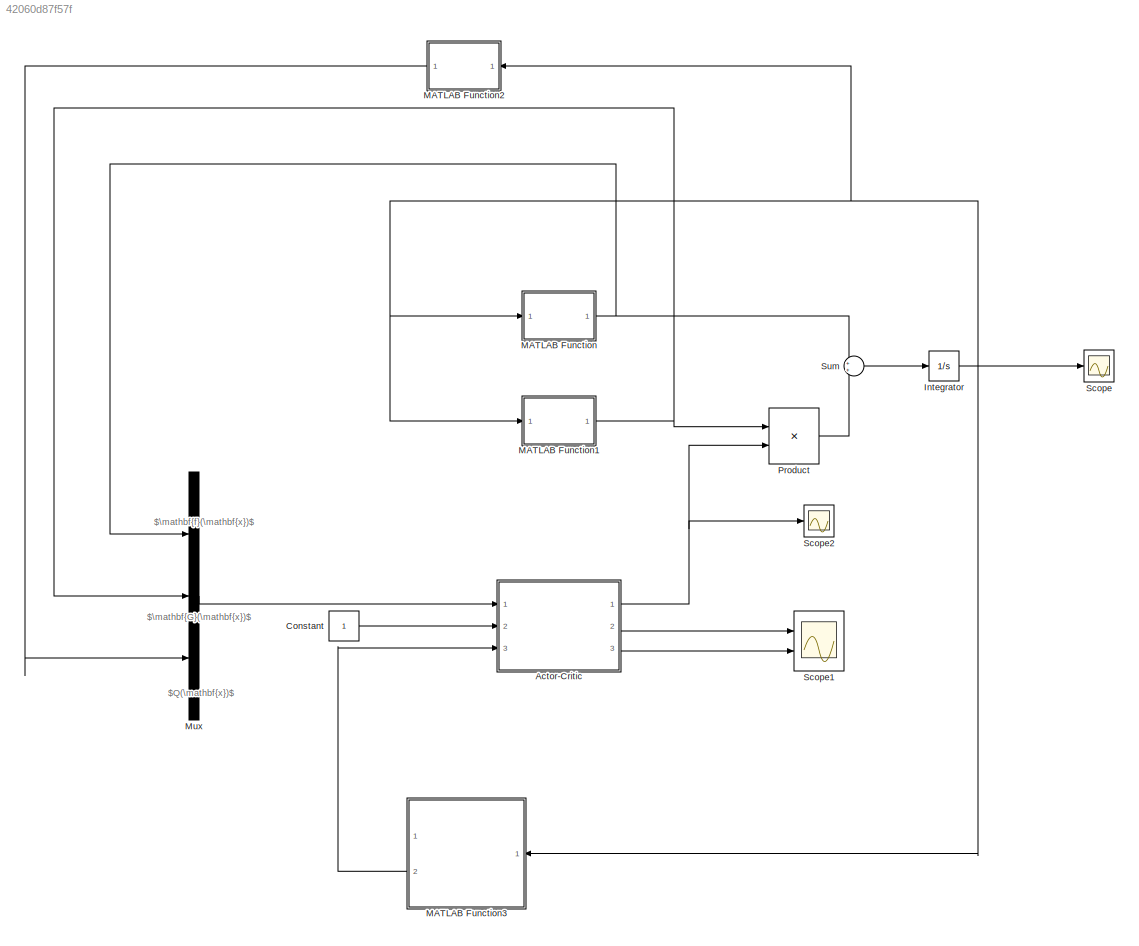
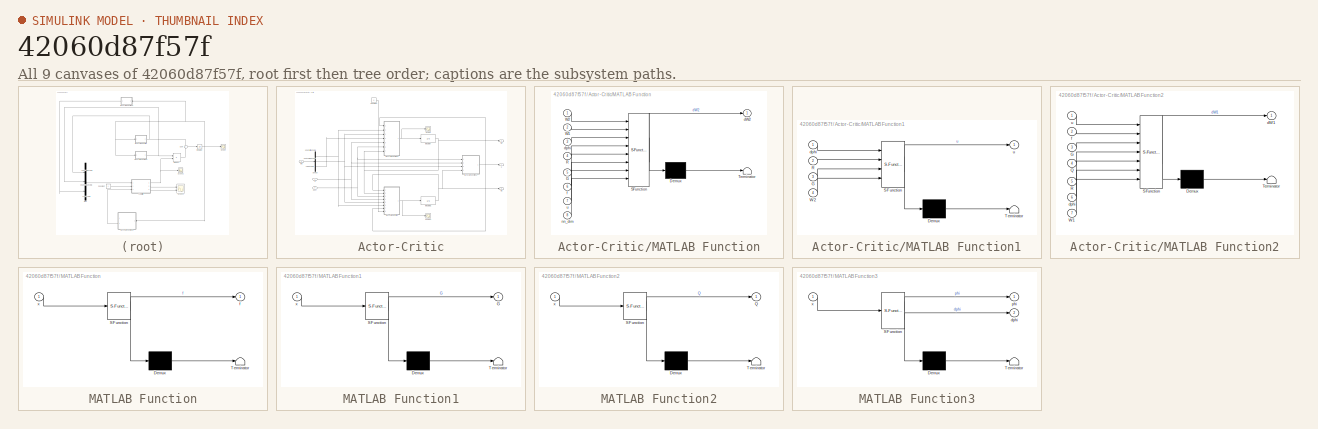
[diagram: thumbnail index - all 9 canvases of the model, root first then tree order]
MODEL slx_42060d87f57f
KIND model
CONFIG AbsTol = auto
CONFIG EnableMultiTasking = off
CONFIG FixedStep = 1e-4
CONFIG MaxStep = auto
CONFIG MinStep = auto
CONFIG RelTol = 1e-3
CONFIG SampleTimeConstraint = Unconstrained
CONFIG Solver = ode4
CONFIG SolverName = ode4
CONFIG StartTime = 0.0
CONFIG StopTime = 30.0
BLOCK [SubSystem] Actor-Critic
  Ports = [3, 3]
  RequestExecContextInheritance = off
BLOCK [Constant] Actor-Critic/Constant
  Value = 6
BLOCK [Demux] Actor-Critic/Demux
  DisplayOption = bar
  Outputs = 3
  Ports = [1, 3]
BLOCK [Integrator] Actor-Critic/Integrator
  InitialCondition = randn(6,1)
  Ports = [1, 1]
BLOCK [Integrator] Actor-Critic/Integrator1
  InitialCondition = randn(6,1)
  Ports = [1, 1]
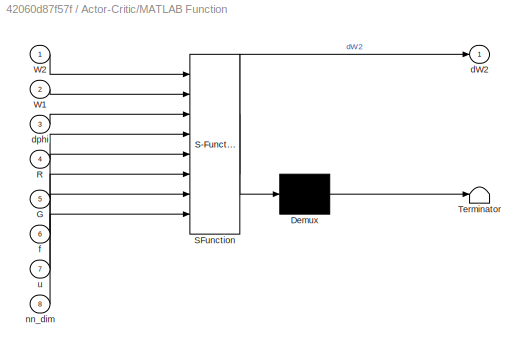
BLOCK [SubSystem] Actor-Critic/MATLAB Function
  ErrorFcn = Stateflow.Translate.translate
  PermitHierarchicalResolution = ExplicitOnly
  Ports = [8, 1]
  RequestExecContextInheritance = off
  SFBlockType = MATLAB Function
  TreatAsAtomicUnit = on
BLOCK [Demux] Actor-Critic/MATLAB Function/ Demux 
  Outputs = 1
  Ports = [1, 1]
BLOCK [S-Function] Actor-Critic/MATLAB Function/ SFunction 
  EnableBusSupport = on
  FunctionName = sf_sfun
  PortCounts = [8 2]
  Ports = [8, 2]
  SFcnIsStateOwnerBlock = off
  SFunctionDeploymentMode = off
  Tag = Stateflow S-Function 4
BLOCK [Terminator] Actor-Critic/MATLAB Function/ Terminator 
BLOCK [Inport] Actor-Critic/MATLAB Function/G
  IconDisplay = Port number
  Port = 5
BLOCK [Inport] Actor-Critic/MATLAB Function/R
  IconDisplay = Port number
  Port = 4
BLOCK [Inport] Actor-Critic/MATLAB Function/W1
  IconDisplay = Port number
  Port = 2
BLOCK [Inport] Actor-Critic/MATLAB Function/W2
  IconDisplay = Port number
BLOCK [Outport] Actor-Critic/MATLAB Function/dW2
  IconDisplay = Port number
BLOCK [Inport] Actor-Critic/MATLAB Function/dphi
  IconDisplay = Port number
  Port = 3
BLOCK [Inport] Actor-Critic/MATLAB Function/f
  IconDisplay = Port number
  Port = 6
BLOCK [Inport] Actor-Critic/MATLAB Function/nn_dim
  IconDisplay = Port number
  Port = 8
BLOCK [Inport] Actor-Critic/MATLAB Function/u
  IconDisplay = Port number
  Port = 7
BLOCK [SubSystem] Actor-Critic/MATLAB Function1
  ErrorFcn = Stateflow.Translate.translate
  PermitHierarchicalResolution = ExplicitOnly
  Ports = [4, 1]
  RequestExecContextInheritance = off
  SFBlockType = MATLAB Function
  TreatAsAtomicUnit = on
BLOCK [Demux] Actor-Critic/MATLAB Function1/ Demux 
  Outputs = 1
  Ports = [1, 1]
BLOCK [S-Function] Actor-Critic/MATLAB Function1/ SFunction 
  EnableBusSupport = on
  FunctionName = sf_sfun
  PortCounts = [4 2]
  Ports = [4, 2]
  SFcnIsStateOwnerBlock = off
  SFunctionDeploymentMode = off
  Tag = Stateflow S-Function 5
BLOCK [Terminator] Actor-Critic/MATLAB Function1/ Terminator 
BLOCK [Inport] Actor-Critic/MATLAB Function1/G
  IconDisplay = Port number
  Port = 3
BLOCK [Inport] Actor-Critic/MATLAB Function1/R
  IconDisplay = Port number
  Port = 2
BLOCK [Inport] Actor-Critic/MATLAB Function1/W2
  IconDisplay = Port number
  Port = 4
BLOCK [Inport] Actor-Critic/MATLAB Function1/dphi
  IconDisplay = Port number
BLOCK [Outport] Actor-Critic/MATLAB Function1/u
  IconDisplay = Port number
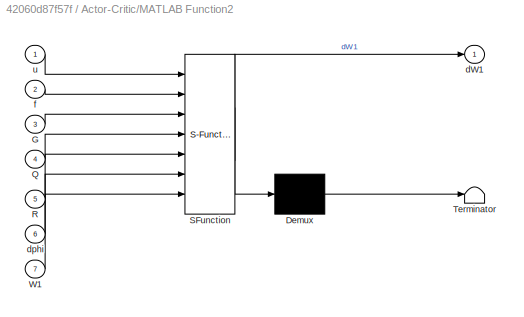
BLOCK [SubSystem] Actor-Critic/MATLAB Function2
  ErrorFcn = Stateflow.Translate.translate
  PermitHierarchicalResolution = ExplicitOnly
  Ports = [7, 1]
  RequestExecContextInheritance = off
  SFBlockType = MATLAB Function
  TreatAsAtomicUnit = on
BLOCK [Demux] Actor-Critic/MATLAB Function2/ Demux 
  Outputs = 1
  Ports = [1, 1]
BLOCK [S-Function] Actor-Critic/MATLAB Function2/ SFunction 
  EnableBusSupport = on
  FunctionName = sf_sfun
  PortCounts = [7 2]
  Ports = [7, 2]
  SFcnIsStateOwnerBlock = off
  SFunctionDeploymentMode = off
  Tag = Stateflow S-Function 3
BLOCK [Terminator] Actor-Critic/MATLAB Function2/ Terminator 
BLOCK [Inport] Actor-Critic/MATLAB Function2/G
  IconDisplay = Port number
  Port = 3
BLOCK [Inport] Actor-Critic/MATLAB Function2/Q
  IconDisplay = Port number
  Port = 4
BLOCK [Inport] Actor-Critic/MATLAB Function2/R
  IconDisplay = Port number
  Port = 5
BLOCK [Inport] Actor-Critic/MATLAB Function2/W1
  IconDisplay = Port number
  Port = 7
BLOCK [Outport] Actor-Critic/MATLAB Function2/dW1
  IconDisplay = Port number
BLOCK [Inport] Actor-Critic/MATLAB Function2/dphi
  IconDisplay = Port number
  Port = 6
BLOCK [Inport] Actor-Critic/MATLAB Function2/f
  IconDisplay = Port number
  Port = 2
BLOCK [Inport] Actor-Critic/MATLAB Function2/u
  IconDisplay = Port number
BLOCK [Inport] Actor-Critic/R
  IconDisplay = Port number
  Port = 2
BLOCK [Scope] Actor-Critic/Scope
  Floating = off
  NumInputPorts = 1
  Ports = [1]
  ScopeSpecificationString = Simulink.scopes.TimeScopeBlockCfg('CurrentConfiguration', extmgr.ConfigurationSet(extmgr.Configuration('Core','General UI',true),extmgr.Configuration('Core','Source UI',true),extmgr.Configuration('Sources','WiredSimulink',true,'DataLoggingVariableName','ScopeData1'),extmgr.Configuration('Visuals','Time Domain',true),extmgr.Configuration('Tools','Plot Navigation',true),extmgr.Configuration('Tools',...<+40ch>
BLOCK [Scope] Actor-Critic/Scope1
  Floating = off
  NumInputPorts = 1
  Ports = [1]
  ScopeSpecificationString = Simulink.scopes.TimeScopeBlockCfg('CurrentConfiguration', extmgr.ConfigurationSet(extmgr.Configuration('Core','General UI',true),extmgr.Configuration('Core','Source UI',true),extmgr.Configuration('Sources','WiredSimulink',true,'DataLoggingVariableName','ScopeData2'),extmgr.Configuration('Visuals','Time Domain',true,'SerializedDisplays',{struct('MinYLimReal','-0.7943','MaxYLimReal','0.6359','YLabel...<+1470ch>
BLOCK [Outport] Actor-Critic/W1
  IconDisplay = Port number
  Port = 2
BLOCK [Outport] Actor-Critic/W2
  IconDisplay = Port number
  Port = 3
BLOCK [Inport] Actor-Critic/dphi
  IconDisplay = Port number
  Port = 3
BLOCK [Inport] Actor-Critic/info
  IconDisplay = Port number
BLOCK [Outport] Actor-Critic/u
  IconDisplay = Port number
BLOCK [Constant] Constant
BLOCK [Integrator] Integrator
  InitialCondition = [10;25;-15]
  Ports = [1, 1]
BLOCK [SubSystem] MATLAB Function
  ErrorFcn = Stateflow.Translate.translate
  PermitHierarchicalResolution = ExplicitOnly
  Ports = [1, 1]
  RequestExecContextInheritance = off
  SFBlockType = MATLAB Function
  TreatAsAtomicUnit = on
BLOCK [Demux] MATLAB Function/ Demux 
  Outputs = 1
  Ports = [1, 1]
BLOCK [S-Function] MATLAB Function/ SFunction 
  EnableBusSupport = on
  FunctionName = sf_sfun
  PortCounts = [1 2]
  Ports = [1, 2]
  SFcnIsStateOwnerBlock = off
  SFunctionDeploymentMode = off
  Tag = Stateflow S-Function 2
BLOCK [Terminator] MATLAB Function/ Terminator 
BLOCK [Outport] MATLAB Function/f
  IconDisplay = Port number
BLOCK [Inport] MATLAB Function/x
  IconDisplay = Port number
BLOCK [SubSystem] MATLAB Function1
  ErrorFcn = Stateflow.Translate.translate
  PermitHierarchicalResolution = ExplicitOnly
  Ports = [1, 1]
  RequestExecContextInheritance = off
  SFBlockType = MATLAB Function
  TreatAsAtomicUnit = on
BLOCK [Demux] MATLAB Function1/ Demux 
  Outputs = 1
  Ports = [1, 1]
BLOCK [S-Function] MATLAB Function1/ SFunction 
  EnableBusSupport = on
  FunctionName = sf_sfun
  PortCounts = [1 2]
  Ports = [1, 2]
  SFcnIsStateOwnerBlock = off
  SFunctionDeploymentMode = off
  Tag = Stateflow S-Function 1
BLOCK [Terminator] MATLAB Function1/ Terminator 
BLOCK [Outport] MATLAB Function1/G
  IconDisplay = Port number
BLOCK [Inport] MATLAB Function1/x
  IconDisplay = Port number
BLOCK [SubSystem] MATLAB Function2
  ErrorFcn = Stateflow.Translate.translate
  PermitHierarchicalResolution = ExplicitOnly
  Ports = [1, 1]
  RequestExecContextInheritance = off
  SFBlockType = MATLAB Function
  TreatAsAtomicUnit = on
BLOCK [Demux] MATLAB Function2/ Demux 
  Outputs = 1
  Ports = [1, 1]
BLOCK [S-Function] MATLAB Function2/ SFunction 
  EnableBusSupport = on
  FunctionName = sf_sfun
  PortCounts = [1 2]
  Ports = [1, 2]
  SFcnIsStateOwnerBlock = off
  SFunctionDeploymentMode = off
  Tag = Stateflow S-Function 6
BLOCK [Terminator] MATLAB Function2/ Terminator 
BLOCK [Outport] MATLAB Function2/Q
  IconDisplay = Port number
BLOCK [Inport] MATLAB Function2/x
  IconDisplay = Port number
BLOCK [SubSystem] MATLAB Function3
  ErrorFcn = Stateflow.Translate.translate
  PermitHierarchicalResolution = ExplicitOnly
  Ports = [1, 2]
  RequestExecContextInheritance = off
  SFBlockType = MATLAB Function
  TreatAsAtomicUnit = on
BLOCK [Demux] MATLAB Function3/ Demux 
  Outputs = 1
  Ports = [1, 1]
BLOCK [S-Function] MATLAB Function3/ SFunction 
  EnableBusSupport = on
  FunctionName = sf_sfun
  PortCounts = [1 3]
  Ports = [1, 3]
  SFcnIsStateOwnerBlock = off
  SFunctionDeploymentMode = off
  Tag = Stateflow S-Function 7
BLOCK [Terminator] MATLAB Function3/ Terminator 
BLOCK [Outport] MATLAB Function3/dphi
  IconDisplay = Port number
  Port = 2
BLOCK [Outport] MATLAB Function3/phi
  IconDisplay = Port number
BLOCK [Inport] MATLAB Function3/x
  IconDisplay = Port number
BLOCK [Mux] Mux
  DisplayOption = bar
  Inputs = 3
  Ports = [3, 1]
BLOCK [Product] Product
  InputSameDT = off
  Inputs = **
  Multiplication = Matrix(*)
  OutDataTypeStr = Inherit: Inherit via internal rule
  Ports = [2, 1]
  RndMeth = Floor
  SaturateOnIntegerOverflow = off
BLOCK [Scope] Scope
  Floating = off
  NumInputPorts = 1
  Ports = [1]
  ScopeSpecificationString = Simulink.scopes.TimeScopeBlockCfg('CurrentConfiguration', extmgr.ConfigurationSet(extmgr.Configuration('Core','General UI',true),extmgr.Configuration('Core','Source UI',true),extmgr.Configuration('Sources','WiredSimulink',true),extmgr.Configuration('Visuals','Time Domain',true,'SerializedDisplays',{struct('MinYLimReal','-20.00000','MaxYLimReal','30.00000','YLabelReal','','MinYLimMag','0.00000','Ma...<+1401ch>
BLOCK [Scope] Scope1
  Floating = off
  NumInputPorts = 2
  Ports = [2]
  ScopeSpecificationString = Simulink.scopes.TimeScopeBlockCfg('CurrentConfiguration', extmgr.ConfigurationSet(extmgr.Configuration('Core','General UI',true),extmgr.Configuration('Core','Source UI',true),extmgr.Configuration('Sources','WiredSimulink',true,'DataLoggingVariableName','ScopeData3'),extmgr.Configuration('Visuals','Time Domain',true,'SerializedDisplays',{struct('MinYLimReal','-2.00552','MaxYLimReal','2.032','YLabel...<+1577ch>
BLOCK [Scope] Scope2
  Floating = off
  NumInputPorts = 1
  Ports = [1]
  ScopeSpecificationString = Simulink.scopes.TimeScopeBlockCfg('CurrentConfiguration', extmgr.ConfigurationSet(extmgr.Configuration('Core','General UI',true),extmgr.Configuration('Core','Source UI',true),extmgr.Configuration('Sources','WiredSimulink',true,'DataLoggingVariableName','ScopeData4'),extmgr.Configuration('Visuals','Time Domain',true,'SerializedDisplays',{struct('MinYLimReal','-1.82389','MaxYLimReal','0.38037','YLab...<+1406ch>
BLOCK [Sum] Sum
  IconShape = round
  InputSameDT = off
  OutDataTypeStr = Inherit: Inherit via internal rule
  Ports = [2, 1]
  SaturateOnIntegerOverflow = off
ANNOTATION (root): $Q(\mathbf{x})$
ANNOTATION (root): $\mathbf{G}(\mathbf{x})$
ANNOTATION (root): $\mathbf{f}(\mathbf{x})$
ANNOTATION Actor-Critic: $Q(\mathbf{x})$
ANNOTATION Actor-Critic: $\mathbf{G}(\mathbf{x})$
ANNOTATION Actor-Critic: $\mathbf{f}(\mathbf{x})$
LINE Actor-Critic/Constant:1 -> Actor-Critic/MATLAB Function:8
NET Actor-Critic/Demux:1 -> Actor-Critic/MATLAB Function2:2, Actor-Critic/MATLAB Function:6
NET Actor-Critic/Demux:2 -> Actor-Critic/MATLAB Function1:3, Actor-Critic/MATLAB Function2:3, Actor-Critic/MATLAB Function:5
LINE Actor-Critic/Demux:3 -> Actor-Critic/MATLAB Function2:4
NET Actor-Critic/Integrator1:1 -> Actor-Critic/MATLAB Function1:4, Actor-Critic/MATLAB Function:1, Actor-Critic/W2:1
NET Actor-Critic/Integrator:1 -> Actor-Critic/MATLAB Function2:7, Actor-Critic/MATLAB Function:2, Actor-Critic/W1:1
NET Actor-Critic/MATLAB Function1:1 -> Actor-Critic/MATLAB Function2:1, Actor-Critic/MATLAB Function:7, Actor-Critic/u:1
NET Actor-Critic/MATLAB Function2:1 -> Actor-Critic/Integrator:1, Actor-Critic/Scope:1
NET Actor-Critic/MATLAB Function:1 -> Actor-Critic/Integrator1:1, Actor-Critic/Scope1:1
NET Actor-Critic/R:1 -> Actor-Critic/MATLAB Function1:2, Actor-Critic/MATLAB Function2:5, Actor-Critic/MATLAB Function:4
NET Actor-Critic/dphi:1 -> Actor-Critic/MATLAB Function1:1, Actor-Critic/MATLAB Function2:6, Actor-Critic/MATLAB Function:3
LINE Actor-Critic/info:1 -> Actor-Critic/Demux:1
NET Actor-Critic:1 -> Product:2, Scope2:1
LINE Actor-Critic:2 -> Scope1:1
LINE Actor-Critic:3 -> Scope1:2
LINE Constant:1 -> Actor-Critic:2
NET Integrator:1 -> MATLAB Function1:1, MATLAB Function2:1, MATLAB Function3:1, MATLAB Function:1, Scope:1
NET MATLAB Function1:1 -> Mux:2, Product:1
LINE MATLAB Function2:1 -> Mux:3
LINE MATLAB Function3:2 -> Actor-Critic:3
NET MATLAB Function:1 -> Mux:1, Sum:1
LINE Mux:1 -> Actor-Critic:1
LINE Product:1 -> Sum:2
LINE Sum:1 -> Integrator:1
note: NET lines group one-source signal fan-out (src -> all destinations, sorted); 1:1 wires keep LINE
CHART MATLAB Function1 states=1 transitions=1
  STATE_LABEL 'eML_blk_kernel()'
  STATE_LABEL 'SCRIPT:\nfunction G = dyn_G(x)\n    G = [0;0;1];'
CHART MATLAB Function states=1 transitions=1
  STATE_LABEL 'eML_blk_kernel()'
  STATE_LABEL 'SCRIPT:\nfunction f = dyn_f(x)\n    A = [-1.01887,  0.90506, -0.00215;\n          0.82225, -1.07741, -0.17555;\n          0      ,  0      , -1];\n    f = A*x;\n'
CHART Actor-Critic/MATLAB Function2 states=1 transitions=1
  STATE_LABEL 'eML_blk_kernel()'
  STATE_LABEL "SCRIPT:\nfunction dW1 = Critic(u, f, G, Q, R, dphi, W1)\n    critic_lr = 0.1;\n\n    sig_2 = dphi*(f + G*u);\n    dW1 = -critic_lr*(sig_2/(sig_2'*sig_2 + 1)^2)*(sig_2'*W1 + Q + u'*R*u);"
CHART Actor-Critic/MATLAB Function states=1 transitions=1
  STATE_LABEL 'eML_blk_kernel()'
  STATE_LABEL "SCRIPT:\nfunction dW2 = Actor(W2, W1, dphi, R, G, f, u, nn_dim)\n    actor_lr = 0.1;\n    F2 = 4*eye(nn_dim);\n    F1 = 0.1*ones(nn_dim,1);\n    \n    sig_2 = dphi*(f + G*u);\n    D1 = dphi*G*(inv(R))*(G')*dphi';\n    m = sig_2/(sig_2'*sig_2 + 1)^2;\n    sig2_bar = sig_2/(sig_2'*sig_2 + 1);\n    dW2 = -actor_lr*((F2*W2 - F1*sig2_bar'*W1) - 0.25*D1*W2*m'*W1);"
CHART Actor-Critic/MATLAB Function1 states=1 transitions=1
  STATE_LABEL 'eML_blk_kernel()'
  STATE_LABEL "SCRIPT:\nfunction u = control_policy(dphi, R, G, W2)\n    u = -0.5*(inv(R))*((G)')*(dphi')*W2;\n"
CHART MATLAB Function2 states=1 transitions=1
  STATE_LABEL 'eML_blk_kernel()'
  STATE_LABEL "SCRIPT:\nfunction Q = Q(x)\n    Q = x'*x;\n"
CHART MATLAB Function3 states=1 transitions=1
  STATE_LABEL 'eML_blk_kernel()'
  STATE_LABEL 'SCRIPT:\nfunction [phi, dphi] = basis(x)\n    phi = [x(1);x(1)^2;x(2);x(2)^2;x(3);x(3)^2];\n    dphi = [1,0,0;2*x(1),0,0;0,1,0;0,2*x(2),0;0,0,1;0,0,2*x(3)];'
